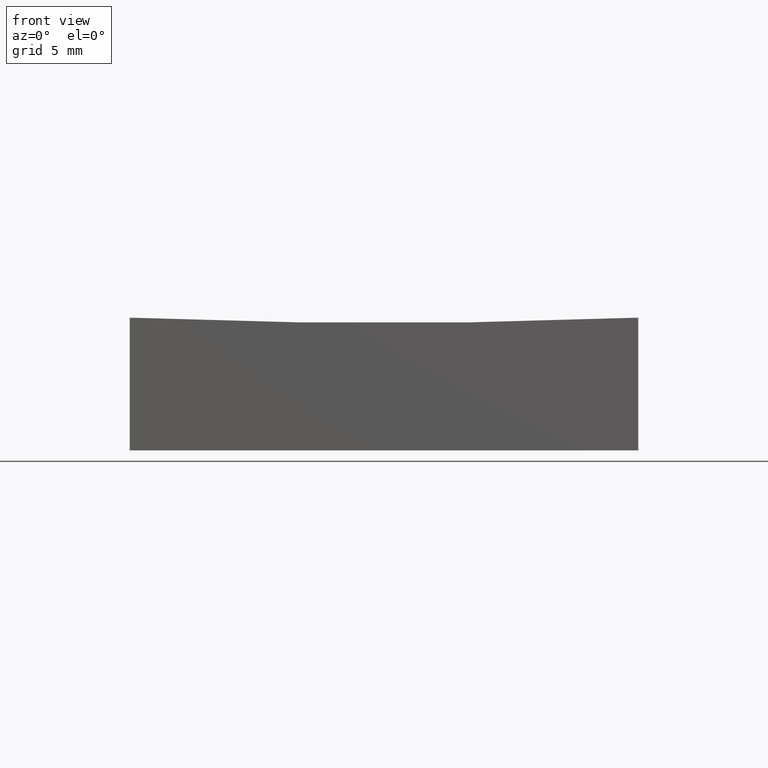
[diagram: clean part render]
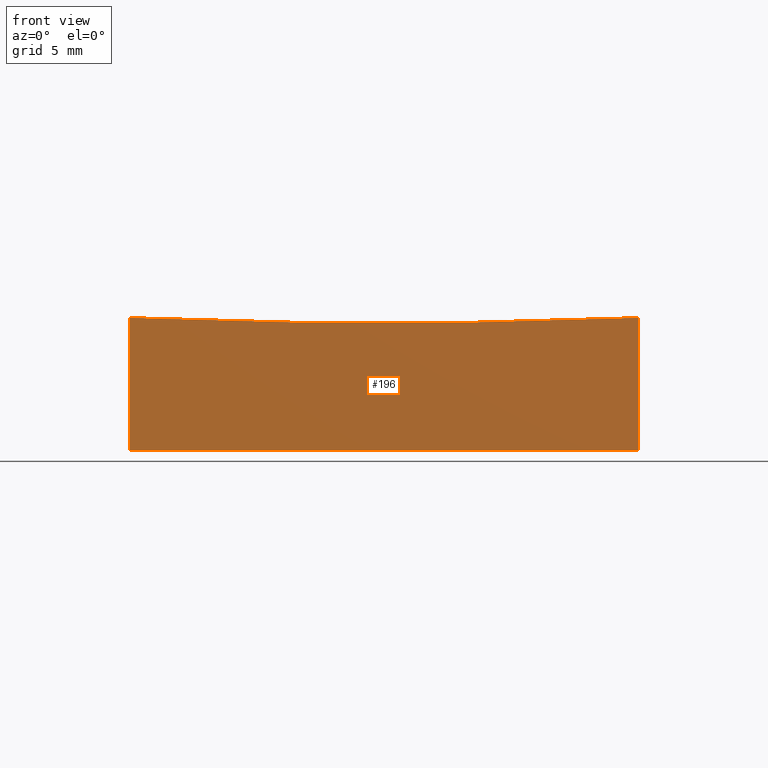
[diagram: same view with one face highlighted and labeled with its STEP entity id]
A machine part, front view. The second image highlights one B-rep face of the part: STEP entity #196.
In plain terms, the highlighted planar face has unit normal (0, 1, 0).
Its self-contained STEP definition (entity closure, byte-faithful):
#6 = FACE_OUTER_BOUND ( 'NONE', #189, .T. ) ;
#20 = DIRECTION ( 'NONE',  ( 0.0000000000000000000, 0.0000000000000000000, 1.000000000000000000 ) ) ;
#24 = LINE ( 'NONE', #102, #214 ) ;
#26 = ORIENTED_EDGE ( 'NONE', *, *, #185, .T. ) ;
#33 = VERTEX_POINT ( 'NONE', #134 ) ;
#36 = DIRECTION ( 'NONE',  ( 0.0000000000000000000, 1.000000000000000000, 0.0000000000000000000 ) ) ;
#44 = AXIS2_PLACEMENT_3D ( 'NONE', #243, #36, #20 ) ;
#64 = DIRECTION ( 'NONE',  ( 1.000000000000000000, 0.0000000000000000000, 0.0000000000000000000 ) ) ;
#65 = LINE ( 'NONE', #159, #95 ) ;
#68 = VERTEX_POINT ( 'NONE', #115 ) ;
#69 = DIRECTION ( 'NONE',  ( -0.0000000000000000000, -0.0000000000000000000, -1.000000000000000000 ) ) ;
#89 = PLANE ( 'NONE',  #193 ) ;
#95 = VECTOR ( 'NONE', #64, 1000.000000000000000 ) ;
#96 = ORIENTED_EDGE ( 'NONE', *, *, #245, .T. ) ;
#98 = CARTESIAN_POINT ( 'NONE',  ( 12.50000000000000355, -12.50000000000000000, 20.00000000000000000 ) ) ;
#102 = CARTESIAN_POINT ( 'NONE',  ( -12.49999999999999645, -12.50000000000000000, 20.00000000000000000 ) ) ;
#115 = CARTESIAN_POINT ( 'NONE',  ( -12.49999999999999645, -12.50000000000000000, 6.521286232226586321 ) ) ;
#120 = DIRECTION ( 'NONE',  ( -0.0000000000000000000, -0.0000000000000000000, -1.000000000000000000 ) ) ;
#134 = CARTESIAN_POINT ( 'NONE',  ( 12.50000000000000355, -12.50000000000000000, 6.521286232226586321 ) ) ;
#142 = CARTESIAN_POINT ( 'NONE',  ( -12.49999999999999645, -12.50000000000000000, 0.0000000000000000000 ) ) ;
#145 = CIRCLE ( 'NONE', #44, 299.7394702070449171 ) ;
#146 = ORIENTED_EDGE ( 'NONE', *, *, #171, .F. ) ;
#157 = CARTESIAN_POINT ( 'NONE',  ( 12.50000000000000355, -12.50000000000000000, 0.0000000000000000000 ) ) ;
#159 = CARTESIAN_POINT ( 'NONE',  ( -12.49999999999999645, -12.50000000000000000, 0.0000000000000000000 ) ) ;
#160 = EDGE_CURVE ( 'NONE', #33, #68, #145, .T. ) ;
#171 = EDGE_CURVE ( 'NONE', #33, #210, #203, .T. ) ;
#173 = ORIENTED_EDGE ( 'NONE', *, *, #160, .T. ) ;
#177 = DIRECTION ( 'NONE',  ( 0.0000000000000000000, -0.0000000000000000000, 1.000000000000000000 ) ) ;
#179 = CARTESIAN_POINT ( 'NONE',  ( -12.49999999999999645, -12.50000000000000000, 20.00000000000000000 ) ) ;
#180 = DIRECTION ( 'NONE',  ( 0.0000000000000000000, 1.000000000000000000, 0.0000000000000000000 ) ) ;
#185 = EDGE_CURVE ( 'NONE', #231, #210, #65, .T. ) ;
#187 = VECTOR ( 'NONE', #120, 1000.000000000000000 ) ;
#189 = EDGE_LOOP ( 'NONE', ( #146, #173, #96, #26 ) ) ;
#193 = AXIS2_PLACEMENT_3D ( 'NONE', #179, #180, #177 ) ;
#196 = ADVANCED_FACE ( 'NONE', ( #6 ), #89, .F. ) ;
#203 = LINE ( 'NONE', #98, #187 ) ;
#210 = VERTEX_POINT ( 'NONE', #157 ) ;
#214 = VECTOR ( 'NONE', #69, 1000.000000000000000 ) ;
#231 = VERTEX_POINT ( 'NONE', #142 ) ;
#243 = CARTESIAN_POINT ( 'NONE',  ( 3.747419205390901213E-14, -12.50000000000000000, 306.0000000000000000 ) ) ;
#245 = EDGE_CURVE ( 'NONE', #68, #231, #24, .T. ) ;